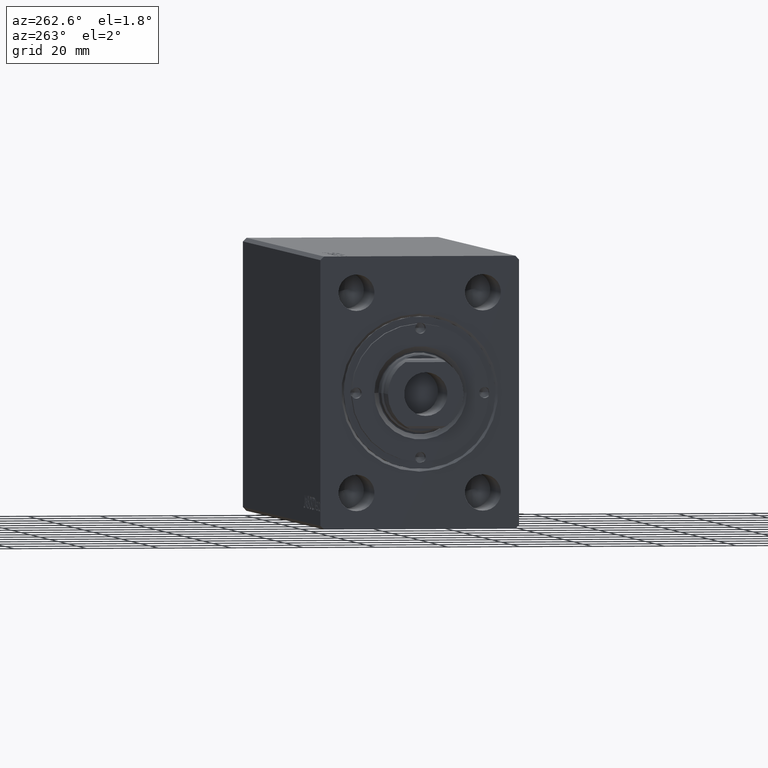
[diagram: clean part render]
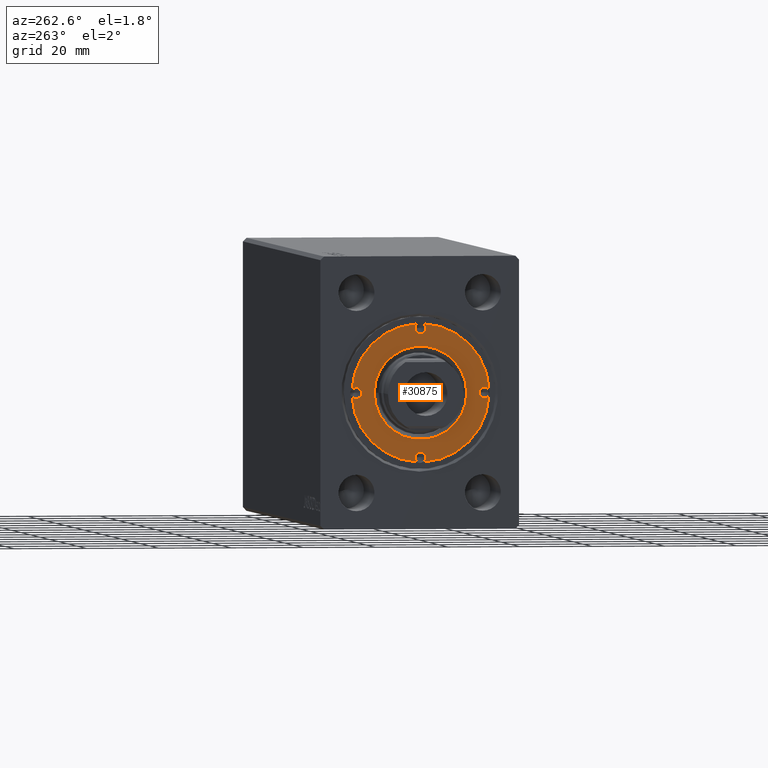
[diagram: same view with one face highlighted and labeled with its STEP entity id]
A machine part, auxiliary view. The second image highlights one B-rep face of the part: STEP entity #30875.
In plain terms, the highlighted planar face has unit normal (-1, 0, 0).
Its self-contained STEP definition (entity closure, byte-faithful):
#687 = AXIS2_PLACEMENT_3D ( 'NONE', #34010, #26433, #40049 ) ;
#793 = DIRECTION ( 'NONE',  ( 0.000000000000000000, 0.000000000000000000, 1.000000000000000000 ) ) ;
#1049 = EDGE_CURVE ( 'NONE', #9453, #40947, #27327, .T. ) ;
#2583 = DIRECTION ( 'NONE',  ( -0.000000000000000000, -0.000000000000000000, 1.000000000000000000 ) ) ;
#2624 = ORIENTED_EDGE ( 'NONE', *, *, #28947, .T. ) ;
#3272 = DIRECTION ( 'NONE',  ( 0.000000000000000000, 0.000000000000000000, 1.000000000000000000 ) ) ;
#3437 = DIRECTION ( 'NONE',  ( -0.000000000000000000, -0.000000000000000000, 1.000000000000000000 ) ) ;
#3652 = DIRECTION ( 'NONE',  ( 1.000000000000000000, 0.000000000000000000, 0.000000000000000000 ) ) ;
#3824 = EDGE_CURVE ( 'NONE', #10613, #14910, #38300, .T. ) ;
#3932 = ORIENTED_EDGE ( 'NONE', *, *, #29203, .F. ) ;
#4235 = AXIS2_PLACEMENT_3D ( 'NONE', #12127, #21005, #27909 ) ;
#4307 = DIRECTION ( 'NONE',  ( 1.000000000000000000, 0.000000000000000000, 0.000000000000000000 ) ) ;
#4726 = CARTESIAN_POINT ( 'NONE',  ( -1.499999999999996891, 17.75000000000000000, 11.79999999999999893 ) ) ;
#4813 = CIRCLE ( 'NONE', #14813, 1.499999999999996891 ) ;
#4848 = CIRCLE ( 'NONE', #29807, 1.499999999999996891 ) ;
#4927 = CARTESIAN_POINT ( 'NONE',  ( 0.000000000000000000, 17.75000000000000000, 11.79999999999999893 ) ) ;
#4936 = CARTESIAN_POINT ( 'NONE',  ( 17.75000000000000000, 0.000000000000000000, 11.79999999999999893 ) ) ;
#5442 = CARTESIAN_POINT ( 'NONE',  ( -16.25000000000000000, 0.000000000000000000, 11.79999999999999893 ) ) ;
#5793 = ORIENTED_EDGE ( 'NONE', *, *, #17486, .T. ) ;
#5845 = CARTESIAN_POINT ( 'NONE',  ( -18.98063380281690016, 0.8576365450261579371, 11.79999999999999893 ) ) ;
#7059 = VERTEX_POINT ( 'NONE', #34886 ) ;
#7268 = CIRCLE ( 'NONE', #34371, 1.499999999999997780 ) ;
#7280 = ORIENTED_EDGE ( 'NONE', *, *, #27063, .F. ) ;
#7326 = VERTEX_POINT ( 'NONE', #16679 ) ;
#7437 = DIRECTION ( 'NONE',  ( 1.000000000000000000, 0.000000000000000000, 0.000000000000000000 ) ) ;
#7439 = CARTESIAN_POINT ( 'NONE',  ( 0.000000000000000000, 0.000000000000000000, 11.79999999999999893 ) ) ;
#7647 = CARTESIAN_POINT ( 'NONE',  ( 0.000000000000000000, -17.75000000000000000, 11.79999999999999893 ) ) ;
#7652 = DIRECTION ( 'NONE',  ( -0.000000000000000000, -0.000000000000000000, 1.000000000000000000 ) ) ;
#8728 = EDGE_CURVE ( 'NONE', #16461, #27275, #13428, .T. ) ;
#9453 = VERTEX_POINT ( 'NONE', #4726 ) ;
#9752 = ORIENTED_EDGE ( 'NONE', *, *, #29989, .T. ) ;
#10613 = VERTEX_POINT ( 'NONE', #35528 ) ;
#10672 = CIRCLE ( 'NONE', #4235, 19.00000000000000000 ) ;
#10735 = CARTESIAN_POINT ( 'NONE',  ( 0.8576365450261562717, 18.98063380281690016, 11.79999999999999893 ) ) ;
#11364 = EDGE_CURVE ( 'NONE', #12054, #42393, #7268, .T. ) ;
#12054 = VERTEX_POINT ( 'NONE', #5442 ) ;
#12127 = CARTESIAN_POINT ( 'NONE',  ( 0.000000000000000000, 0.000000000000000000, 11.79999999999999893 ) ) ;
#12245 = AXIS2_PLACEMENT_3D ( 'NONE', #30952, #3272, #43907 ) ;
#12315 = AXIS2_PLACEMENT_3D ( 'NONE', #7439, #21070, #23762 ) ;
#12513 = DIRECTION ( 'NONE',  ( -0.000000000000000000, -0.000000000000000000, 1.000000000000000000 ) ) ;
#13131 = CARTESIAN_POINT ( 'NONE',  ( -1.499999999999996891, -17.75000000000000000, 11.79999999999999893 ) ) ;
#13277 = DIRECTION ( 'NONE',  ( 1.000000000000000000, 0.000000000000000000, 0.000000000000000000 ) ) ;
#13428 = CIRCLE ( 'NONE', #44100, 1.499999999999997780 ) ;
#14019 = DIRECTION ( 'NONE',  ( -0.000000000000000000, -0.000000000000000000, -1.000000000000000000 ) ) ;
#14129 = CARTESIAN_POINT ( 'NONE',  ( 0.000000000000000000, 17.75000000000000000, 11.79999999999999893 ) ) ;
#14456 = CIRCLE ( 'NONE', #12315, 19.00000000000000000 ) ;
#14813 = AXIS2_PLACEMENT_3D ( 'NONE', #7647, #23973, #7437 ) ;
#14910 = VERTEX_POINT ( 'NONE', #31698 ) ;
#15449 = ORIENTED_EDGE ( 'NONE', *, *, #22764, .F. ) ;
#15848 = CIRCLE ( 'NONE', #29394, 19.00000000000000000 ) ;
#16340 = CARTESIAN_POINT ( 'NONE',  ( 1.499999999999996891, -17.75000000000000000, 11.79999999999999893 ) ) ;
#16376 = CARTESIAN_POINT ( 'NONE',  ( 0.000000000000000000, 0.000000000000000000, 11.79999999999999893 ) ) ;
#16461 = VERTEX_POINT ( 'NONE', #20440 ) ;
#16537 = CIRCLE ( 'NONE', #25809, 12.79999999999997407 ) ;
#16679 = CARTESIAN_POINT ( 'NONE',  ( 18.98063380281688950, -0.8576365450261710377, 11.79999999999999893 ) ) ;
#16862 = CARTESIAN_POINT ( 'NONE',  ( 0.000000000000000000, 0.000000000000000000, 11.79999999999999893 ) ) ;
#17072 = ORIENTED_EDGE ( 'NONE', *, *, #24818, .F. ) ;
#17486 = EDGE_CURVE ( 'NONE', #31874, #7326, #15848, .T. ) ;
#17871 = EDGE_CURVE ( 'NONE', #31874, #43081, #25070, .T. ) ;
#17972 = CIRCLE ( 'NONE', #12245, 19.00000000000000000 ) ;
#18211 = FACE_OUTER_BOUND ( 'NONE', #23524, .T. ) ;
#18339 = DIRECTION ( 'NONE',  ( -0.000000000000000000, -0.000000000000000000, 1.000000000000000000 ) ) ;
#18559 = DIRECTION ( 'NONE',  ( 1.000000000000000000, 0.000000000000000000, 0.000000000000000000 ) ) ;
#18648 = CARTESIAN_POINT ( 'NONE',  ( 0.000000000000000000, 0.000000000000000000, 11.79999999999999893 ) ) ;
#19458 = DIRECTION ( 'NONE',  ( 1.000000000000000000, 0.000000000000000000, 0.000000000000000000 ) ) ;
#19925 = ORIENTED_EDGE ( 'NONE', *, *, #11364, .F. ) ;
#20074 = CARTESIAN_POINT ( 'NONE',  ( 1.499999999999996891, 17.75000000000000000, 11.79999999999999893 ) ) ;
#20297 = CARTESIAN_POINT ( 'NONE',  ( 16.25000000000000000, 1.836970198721027222E-16, 11.79999999999999893 ) ) ;
#20303 = EDGE_CURVE ( 'NONE', #38352, #42393, #10672, .T. ) ;
#20440 = CARTESIAN_POINT ( 'NONE',  ( 18.98063380281688950, 0.8576365450261742573, 11.79999999999999893 ) ) ;
#20457 = ORIENTED_EDGE ( 'NONE', *, *, #17871, .F. ) ;
#20612 = EDGE_LOOP ( 'NONE', ( #27340, #2624 ) ) ;
#20669 = DIRECTION ( 'NONE',  ( 1.000000000000000000, 0.000000000000000000, 0.000000000000000000 ) ) ;
#20684 = EDGE_CURVE ( 'NONE', #27275, #7326, #35625, .T. ) ;
#21005 = DIRECTION ( 'NONE',  ( 0.000000000000000000, 0.000000000000000000, 1.000000000000000000 ) ) ;
#21070 = DIRECTION ( 'NONE',  ( 0.000000000000000000, 0.000000000000000000, 1.000000000000000000 ) ) ;
#22091 = CARTESIAN_POINT ( 'NONE',  ( 0.000000000000000000, 17.75000000000000000, 11.79999999999999893 ) ) ;
#22252 = DIRECTION ( 'NONE',  ( 1.000000000000000000, 0.000000000000000000, 0.000000000000000000 ) ) ;
#22273 = CIRCLE ( 'NONE', #30826, 1.499999999999996891 ) ;
#22443 = VERTEX_POINT ( 'NONE', #10735 ) ;
#22758 = DIRECTION ( 'NONE',  ( -0.000000000000000000, -0.000000000000000000, 1.000000000000000000 ) ) ;
#22764 = EDGE_CURVE ( 'NONE', #7059, #12054, #31185, .T. ) ;
#23524 = EDGE_LOOP ( 'NONE', ( #15449, #26278, #17072, #34994, #20457, #5793, #24216, #38417, #9752, #3932, #29853, #7280, #32562, #19925 ) ) ;
#23651 = DIRECTION ( 'NONE',  ( 1.000000000000000000, 0.000000000000000000, 0.000000000000000000 ) ) ;
#23762 = DIRECTION ( 'NONE',  ( 1.000000000000000000, 0.000000000000000000, 0.000000000000000000 ) ) ;
#23973 = DIRECTION ( 'NONE',  ( -0.000000000000000000, -0.000000000000000000, 1.000000000000000000 ) ) ;
#24102 = DIRECTION ( 'NONE',  ( -0.000000000000000000, -0.000000000000000000, 1.000000000000000000 ) ) ;
#24195 = EDGE_CURVE ( 'NONE', #43081, #38313, #4813, .T. ) ;
#24216 = ORIENTED_EDGE ( 'NONE', *, *, #20684, .F. ) ;
#24383 = CIRCLE ( 'NONE', #39355, 1.499999999999996891 ) ;
#24756 = CARTESIAN_POINT ( 'NONE',  ( -17.75000000000000000, 0.000000000000000000, 11.79999999999999893 ) ) ;
#24818 = EDGE_CURVE ( 'NONE', #38313, #44161, #4848, .T. ) ;
#25070 = CIRCLE ( 'NONE', #30785, 1.499999999999996891 ) ;
#25370 = DIRECTION ( 'NONE',  ( 0.000000000000000000, 0.000000000000000000, 1.000000000000000000 ) ) ;
#25487 = CARTESIAN_POINT ( 'NONE',  ( 0.000000000000000000, -17.75000000000000000, 11.79999999999999893 ) ) ;
#25809 = AXIS2_PLACEMENT_3D ( 'NONE', #26996, #14019, #23651 ) ;
#26096 = DIRECTION ( 'NONE',  ( 1.000000000000000000, 0.000000000000000000, 0.000000000000000000 ) ) ;
#26278 = ORIENTED_EDGE ( 'NONE', *, *, #27967, .T. ) ;
#26433 = DIRECTION ( 'NONE',  ( -0.000000000000000000, -0.000000000000000000, 1.000000000000000000 ) ) ;
#26667 = CARTESIAN_POINT ( 'NONE',  ( 0.000000000000000000, -17.75000000000000000, 11.79999999999999893 ) ) ;
#26996 = CARTESIAN_POINT ( 'NONE',  ( 0.000000000000000000, 0.000000000000000000, 11.79999999999999893 ) ) ;
#27063 = EDGE_CURVE ( 'NONE', #38352, #9453, #22273, .T. ) ;
#27275 = VERTEX_POINT ( 'NONE', #20297 ) ;
#27327 = CIRCLE ( 'NONE', #36559, 1.499999999999996891 ) ;
#27340 = ORIENTED_EDGE ( 'NONE', *, *, #3824, .T. ) ;
#27388 = CARTESIAN_POINT ( 'NONE',  ( 0.8576365450261690393, -18.98063380281689305, 11.79999999999999893 ) ) ;
#27745 = AXIS2_PLACEMENT_3D ( 'NONE', #18648, #793, #32265 ) ;
#27909 = DIRECTION ( 'NONE',  ( 1.000000000000000000, 0.000000000000000000, 0.000000000000000000 ) ) ;
#27967 = EDGE_CURVE ( 'NONE', #7059, #44161, #14456, .T. ) ;
#28695 = FACE_BOUND ( 'NONE', #20612, .T. ) ;
#28810 = DIRECTION ( 'NONE',  ( -0.000000000000000000, -0.000000000000000000, 1.000000000000000000 ) ) ;
#28947 = EDGE_CURVE ( 'NONE', #14910, #10613, #16537, .T. ) ;
#29203 = EDGE_CURVE ( 'NONE', #40947, #22443, #24383, .T. ) ;
#29394 = AXIS2_PLACEMENT_3D ( 'NONE', #16376, #25370, #22252 ) ;
#29807 = AXIS2_PLACEMENT_3D ( 'NONE', #26667, #3437, #3652 ) ;
#29853 = ORIENTED_EDGE ( 'NONE', *, *, #1049, .F. ) ;
#29989 = EDGE_CURVE ( 'NONE', #16461, #22443, #17972, .T. ) ;
#30785 = AXIS2_PLACEMENT_3D ( 'NONE', #25487, #12513, #19458 ) ;
#30826 = AXIS2_PLACEMENT_3D ( 'NONE', #22091, #22758, #26096 ) ;
#30875 = ADVANCED_FACE ( 'NONE', ( #18211, #28695 ), #35186, .T. ) ;
#30952 = CARTESIAN_POINT ( 'NONE',  ( 0.000000000000000000, 0.000000000000000000, 11.79999999999999893 ) ) ;
#31185 = CIRCLE ( 'NONE', #31867, 1.499999999999997780 ) ;
#31237 = DIRECTION ( 'NONE',  ( 1.000000000000000000, 0.000000000000000000, 0.000000000000000000 ) ) ;
#31698 = CARTESIAN_POINT ( 'NONE',  ( -12.79999999999997407, 1.567547902908609029E-15, 11.79999999999999893 ) ) ;
#31867 = AXIS2_PLACEMENT_3D ( 'NONE', #24756, #24102, #31237 ) ;
#31874 = VERTEX_POINT ( 'NONE', #27388 ) ;
#32265 = DIRECTION ( 'NONE',  ( 1.000000000000000000, 0.000000000000000000, -0.000000000000000000 ) ) ;
#32562 = ORIENTED_EDGE ( 'NONE', *, *, #20303, .T. ) ;
#33019 = CARTESIAN_POINT ( 'NONE',  ( -0.8576365450261700385, 18.98063380281688950, 11.79999999999999893 ) ) ;
#34010 = CARTESIAN_POINT ( 'NONE',  ( 17.75000000000000000, 0.000000000000000000, 11.79999999999999893 ) ) ;
#34371 = AXIS2_PLACEMENT_3D ( 'NONE', #43888, #2583, #13277 ) ;
#34886 = CARTESIAN_POINT ( 'NONE',  ( -18.98063380281689305, -0.8576365450261700385, 11.79999999999999893 ) ) ;
#34994 = ORIENTED_EDGE ( 'NONE', *, *, #24195, .F. ) ;
#35186 = PLANE ( 'NONE',  #27745 ) ;
#35528 = CARTESIAN_POINT ( 'NONE',  ( 12.79999999999997407, 0.000000000000000000, 11.79999999999999893 ) ) ;
#35625 = CIRCLE ( 'NONE', #687, 1.499999999999997780 ) ;
#36559 = AXIS2_PLACEMENT_3D ( 'NONE', #4927, #28810, #42421 ) ;
#37065 = CARTESIAN_POINT ( 'NONE',  ( -0.8576365450261641543, -18.98063380281689305, 11.79999999999999893 ) ) ;
#38300 = CIRCLE ( 'NONE', #42553, 12.79999999999997407 ) ;
#38313 = VERTEX_POINT ( 'NONE', #13131 ) ;
#38352 = VERTEX_POINT ( 'NONE', #33019 ) ;
#38417 = ORIENTED_EDGE ( 'NONE', *, *, #8728, .F. ) ;
#39355 = AXIS2_PLACEMENT_3D ( 'NONE', #14129, #7652, #4307 ) ;
#40049 = DIRECTION ( 'NONE',  ( 1.000000000000000000, 0.000000000000000000, 0.000000000000000000 ) ) ;
#40947 = VERTEX_POINT ( 'NONE', #20074 ) ;
#41416 = DIRECTION ( 'NONE',  ( -0.000000000000000000, -0.000000000000000000, -1.000000000000000000 ) ) ;
#42393 = VERTEX_POINT ( 'NONE', #5845 ) ;
#42421 = DIRECTION ( 'NONE',  ( 1.000000000000000000, 0.000000000000000000, 0.000000000000000000 ) ) ;
#42553 = AXIS2_PLACEMENT_3D ( 'NONE', #16862, #41416, #20669 ) ;
#43081 = VERTEX_POINT ( 'NONE', #16340 ) ;
#43888 = CARTESIAN_POINT ( 'NONE',  ( -17.75000000000000000, 0.000000000000000000, 11.79999999999999893 ) ) ;
#43907 = DIRECTION ( 'NONE',  ( 1.000000000000000000, 0.000000000000000000, 0.000000000000000000 ) ) ;
#44100 = AXIS2_PLACEMENT_3D ( 'NONE', #4936, #18339, #18559 ) ;
#44161 = VERTEX_POINT ( 'NONE', #37065 ) ;